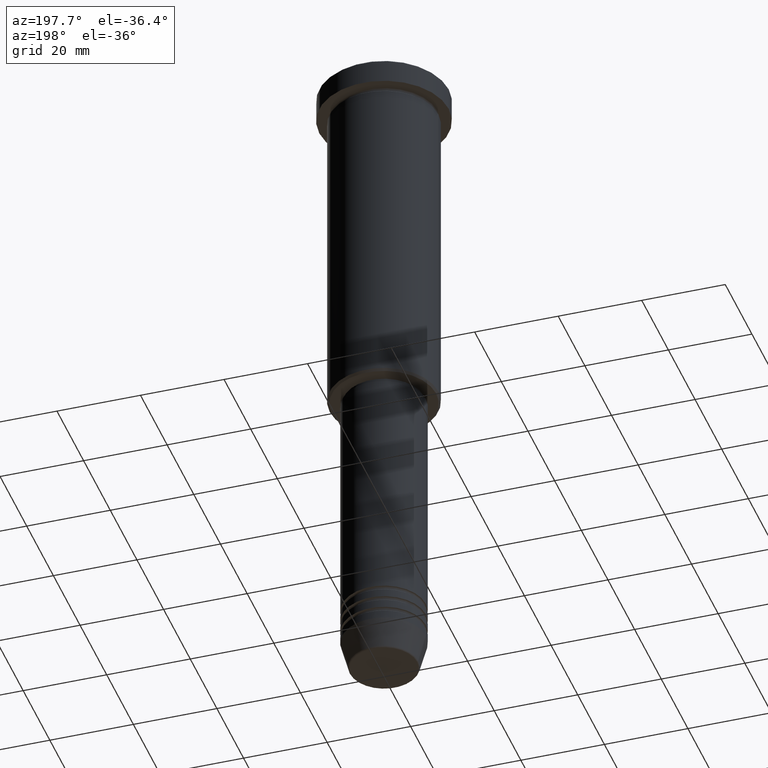
[diagram: clean part render]
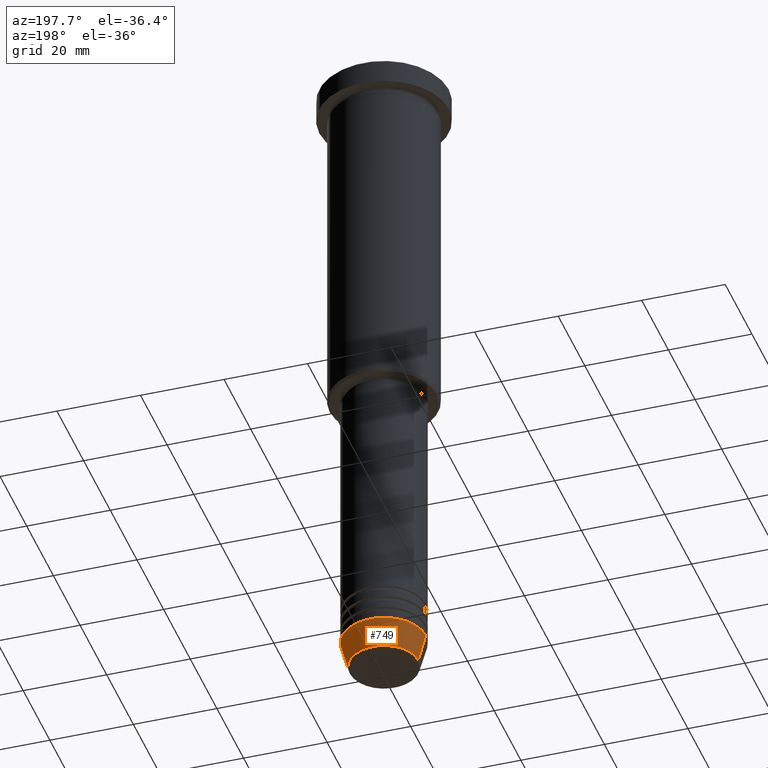
[diagram: same view with one face highlighted and labeled with its STEP entity id]
A machine part, auxiliary view. The second image highlights one B-rep face of the part: STEP entity #749.
In plain terms, the highlighted conical surface has half-angle 15 deg.
Its self-contained STEP definition (entity closure, byte-faithful):
#10 = LINE ( 'NONE', #257, #402 ) ;
#47 = EDGE_CURVE ( 'NONE', #611, #989, #943, .T. ) ;
#52 = CARTESIAN_POINT ( 'NONE',  ( 0.000000000000000000, 0.000000000000000000, -160.6294095225512137 ) ) ;
#69 = AXIS2_PLACEMENT_3D ( 'NONE', #345, #984, #879 ) ;
#76 = ORIENTED_EDGE ( 'NONE', *, *, #957, .F. ) ;
#188 = CARTESIAN_POINT ( 'NONE',  ( 0.000000000000000000, 0.000000000000000000, -154.0000000000000000 ) ) ;
#207 = CARTESIAN_POINT ( 'NONE',  ( 10.00000000000000000, 0.000000000000000000, -154.0000000000000000 ) ) ;
#230 = DIRECTION ( 'NONE',  ( -0.000000000000000000, -0.000000000000000000, 1.000000000000000000 ) ) ;
#233 = AXIS2_PLACEMENT_3D ( 'NONE', #52, #230, #244 ) ;
#236 = CARTESIAN_POINT ( 'NONE',  ( -10.00000000000000000, 1.224646799147353256E-15, -154.0000000000000000 ) ) ;
#244 = DIRECTION ( 'NONE',  ( 1.000000000000000000, 0.000000000000000000, 0.000000000000000000 ) ) ;
#246 = VECTOR ( 'NONE', #849, 1000.000000000000000 ) ;
#257 = CARTESIAN_POINT ( 'NONE',  ( -10.00000000000000000, 1.224646799147353256E-15, -154.0000000000000000 ) ) ;
#290 = FACE_OUTER_BOUND ( 'NONE', #863, .T. ) ;
#345 = CARTESIAN_POINT ( 'NONE',  ( 0.000000000000000000, 0.000000000000000000, -154.0000000000000000 ) ) ;
#373 = DIRECTION ( 'NONE',  ( 1.000000000000000000, 0.000000000000000000, 0.000000000000000000 ) ) ;
#402 = VECTOR ( 'NONE', #623, 1000.000000000000000 ) ;
#455 = AXIS2_PLACEMENT_3D ( 'NONE', #188, #656, #373 ) ;
#476 = VERTEX_POINT ( 'NONE', #236 ) ;
#480 = ORIENTED_EDGE ( 'NONE', *, *, #634, .F. ) ;
#601 = CARTESIAN_POINT ( 'NONE',  ( 10.00000000000000000, 0.000000000000000000, -154.0000000000000000 ) ) ;
#610 = EDGE_CURVE ( 'NONE', #989, #476, #10, .T. ) ;
#611 = VERTEX_POINT ( 'NONE', #1093 ) ;
#623 = DIRECTION ( 'NONE',  ( -0.2588190451025213501, 3.169619151431772337E-17, 0.9659258262890680902 ) ) ;
#634 = EDGE_CURVE ( 'NONE', #691, #476, #1133, .T. ) ;
#656 = DIRECTION ( 'NONE',  ( -0.000000000000000000, -0.000000000000000000, 1.000000000000000000 ) ) ;
#691 = VERTEX_POINT ( 'NONE', #207 ) ;
#708 = CARTESIAN_POINT ( 'NONE',  ( -8.223655072137198374, 1.115877042642912448E-15, -160.6294095225512137 ) ) ;
#745 = ORIENTED_EDGE ( 'NONE', *, *, #47, .T. ) ;
#749 = ADVANCED_FACE ( 'NONE', ( #290 ), #961, .T. ) ;
#849 = DIRECTION ( 'NONE',  ( 0.2588190451025213501, 0.000000000000000000, 0.9659258262890680902 ) ) ;
#853 = ORIENTED_EDGE ( 'NONE', *, *, #610, .T. ) ;
#863 = EDGE_LOOP ( 'NONE', ( #745, #853, #480, #76 ) ) ;
#865 = LINE ( 'NONE', #601, #246 ) ;
#879 = DIRECTION ( 'NONE',  ( 1.000000000000000000, 0.000000000000000000, 0.000000000000000000 ) ) ;
#943 = CIRCLE ( 'NONE', #233, 8.223655072137198374 ) ;
#957 = EDGE_CURVE ( 'NONE', #611, #691, #865, .T. ) ;
#961 = CONICAL_SURFACE ( 'NONE', #455, 10.00000000000000000, 0.2617993877991500740 ) ;
#984 = DIRECTION ( 'NONE',  ( -0.000000000000000000, -0.000000000000000000, 1.000000000000000000 ) ) ;
#989 = VERTEX_POINT ( 'NONE', #708 ) ;
#1093 = CARTESIAN_POINT ( 'NONE',  ( 8.223655072137198374, 0.000000000000000000, -160.6294095225512137 ) ) ;
#1133 = CIRCLE ( 'NONE', #69, 10.00000000000000000 ) ;